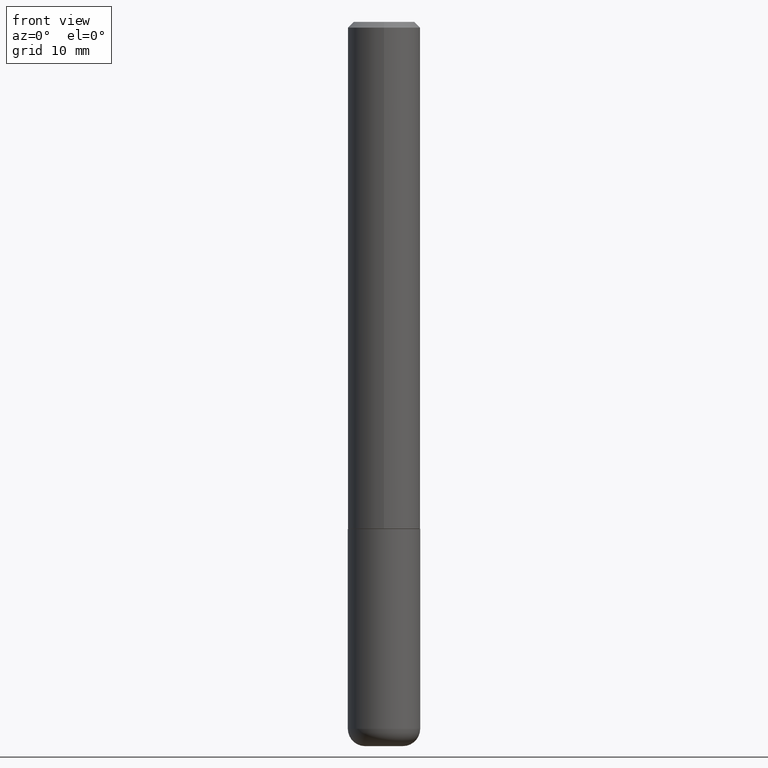
[diagram: clean part render]
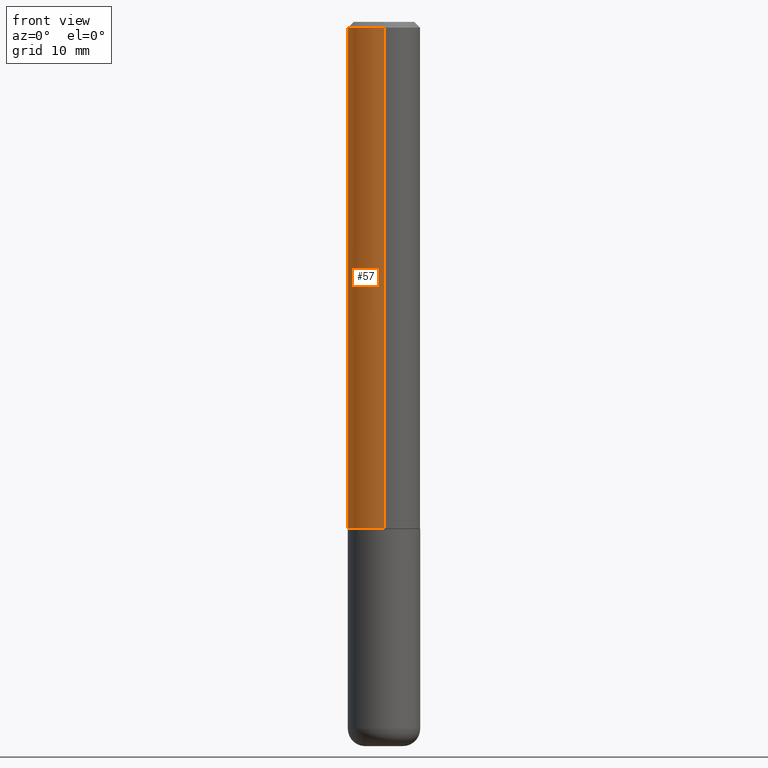
[diagram: same view with one face highlighted and labeled with its STEP entity id]
A machine part, front view. The second image highlights one B-rep face of the part: STEP entity #57.
In plain terms, the highlighted cylindrical surface (edge-blend (fillet) strip) has radius 3.175 mm, axis along (-0, 0, 1).
Its self-contained STEP definition (entity closure, byte-faithful):
#9 = LINE ( 'NONE', #329, #259 ) ;
#40 = CARTESIAN_POINT ( 'NONE',  ( 4.275902075032765006E-29, -6.108352076760502035E-15, -1.748999999999999888 ) ) ;
#46 = VERTEX_POINT ( 'NONE', #75 ) ;
#57 = ADVANCED_FACE ( 'NONE', ( #418 ), #354, .T. ) ;
#71 = EDGE_CURVE ( 'NONE', #398, #224, #210, .T. ) ;
#75 = CARTESIAN_POINT ( 'NONE',  ( -8.728703347107422194E-16, -0.1250000000000063560, -1.748999999999999222 ) ) ;
#83 = CARTESIAN_POINT ( 'NONE',  ( 8.881784197001260212E-16, 0.1250000000000001110, -4.365603256689900677E-16 ) ) ;
#94 = ORIENTED_EDGE ( 'NONE', *, *, #331, .F. ) ;
#121 = ORIENTED_EDGE ( 'NONE', *, *, #277, .T. ) ;
#131 = DIRECTION ( 'NONE',  ( -6.982962677686266711E-15, -1.000000000000000000, 3.492482605351917386E-15 ) ) ;
#137 = DIRECTION ( 'NONE',  ( -2.444769625519019670E-29, 3.492482605351917386E-15, 1.000000000000000000 ) ) ;
#140 = DIRECTION ( 'NONE',  ( -2.444769625519019670E-29, 3.492482605351917386E-15, 1.000000000000000000 ) ) ;
#161 = CARTESIAN_POINT ( 'NONE',  ( 4.889539251038044560E-31, -6.984965210703842315E-17, -0.02000000000000002470 ) ) ;
#169 = AXIS2_PLACEMENT_3D ( 'NONE', #415, #320, #131 ) ;
#171 = CARTESIAN_POINT ( 'NONE',  ( 8.728703347107837333E-16, 0.1249999999999999306, -0.02000000000000046185 ) ) ;
#175 = DIRECTION ( 'NONE',  ( -6.982962677686265133E-15, -1.000000000000000000, 4.370956789862812472E-15 ) ) ;
#198 = DIRECTION ( 'NONE',  ( -6.982962677686265922E-15, -1.000000000000000000, 3.483106191921935554E-15 ) ) ;
#210 = CIRCLE ( 'NONE', #369, 0.1250000000000000000 ) ;
#224 = VERTEX_POINT ( 'NONE', #260 ) ;
#239 = DIRECTION ( 'NONE',  ( -2.444769625519019670E-29, 3.492482605351917386E-15, 1.000000000000000000 ) ) ;
#251 = ORIENTED_EDGE ( 'NONE', *, *, #384, .T. ) ;
#259 = VECTOR ( 'NONE', #140, 39.37007874015748143 ) ;
#260 = CARTESIAN_POINT ( 'NONE',  ( -8.575622497214408537E-16, -0.1250000000000000555, -0.01999999999999959102 ) ) ;
#265 = VECTOR ( 'NONE', #362, 39.37007874015748143 ) ;
#272 = VERTEX_POINT ( 'NONE', #364 ) ;
#277 = EDGE_CURVE ( 'NONE', #272, #46, #413, .T. ) ;
#278 = ORIENTED_EDGE ( 'NONE', *, *, #71, .F. ) ;
#283 = AXIS2_PLACEMENT_3D ( 'NONE', #40, #239, #175 ) ;
#292 = LINE ( 'NONE', #83, #265 ) ;
#299 = EDGE_LOOP ( 'NONE', ( #94, #121, #251, #278 ) ) ;
#320 = DIRECTION ( 'NONE',  ( -2.444769625519019670E-29, 3.492482605351917386E-15, 1.000000000000000000 ) ) ;
#329 = CARTESIAN_POINT ( 'NONE',  ( -8.728703347107841277E-16, -0.1250000000000001110, 4.365603256689900677E-16 ) ) ;
#331 = EDGE_CURVE ( 'NONE', #272, #398, #292, .T. ) ;
#354 = CYLINDRICAL_SURFACE ( 'NONE', #169, 0.1250000000000001110 ) ;
#362 = DIRECTION ( 'NONE',  ( -2.444769625519019670E-29, 3.492482605351917386E-15, 1.000000000000000000 ) ) ;
#364 = CARTESIAN_POINT ( 'NONE',  ( 8.881784197001479121E-16, 0.1249999999999941019, -1.749000000000000332 ) ) ;
#369 = AXIS2_PLACEMENT_3D ( 'NONE', #161, #137, #198 ) ;
#384 = EDGE_CURVE ( 'NONE', #46, #224, #9, .T. ) ;
#398 = VERTEX_POINT ( 'NONE', #171 ) ;
#413 = CIRCLE ( 'NONE', #283, 0.1250000000000002498 ) ;
#415 = CARTESIAN_POINT ( 'NONE',  ( 0.000000000000000000, 0.000000000000000000, 0.000000000000000000 ) ) ;
#418 = FACE_OUTER_BOUND ( 'NONE', #299, .T. ) ;